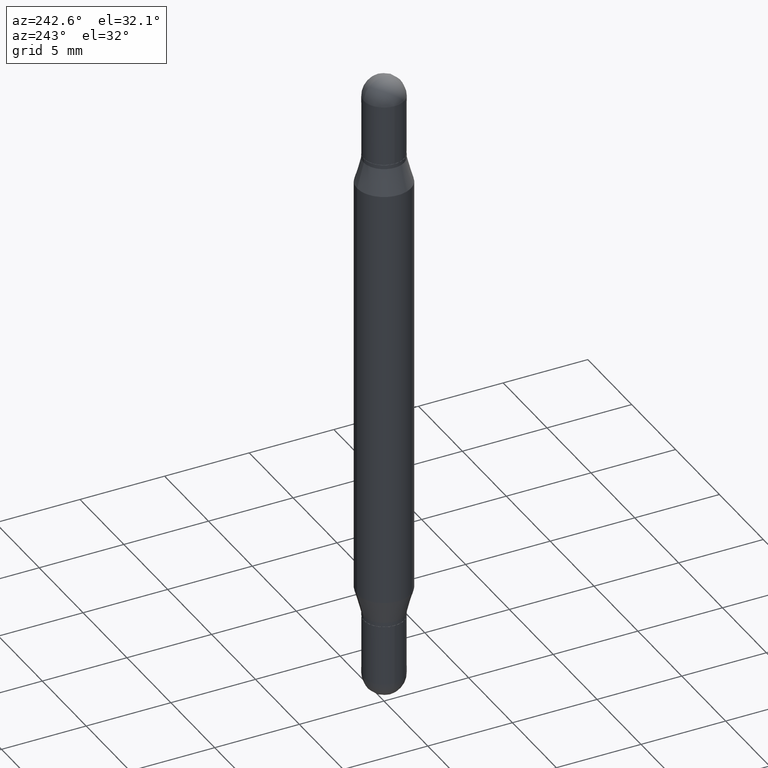
[diagram: clean part render]
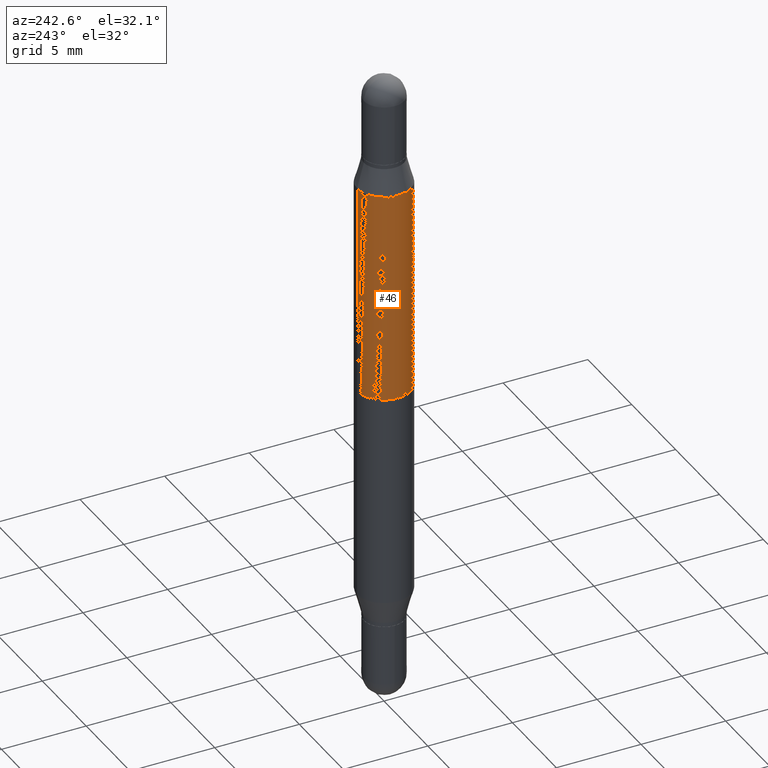
[diagram: same view with one face highlighted and labeled with its STEP entity id]
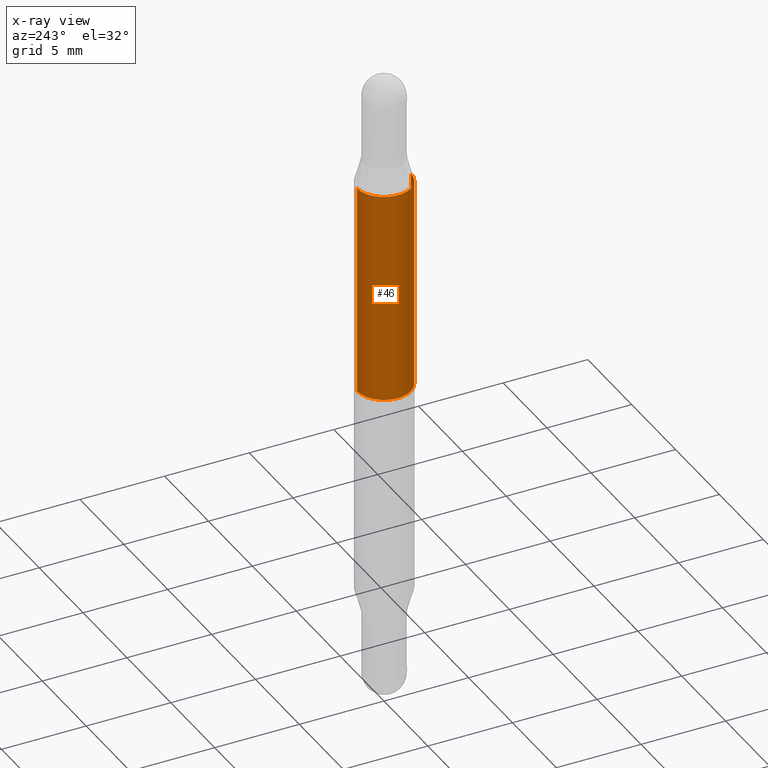
[diagram: x-ray of the same camera — body ghosted, the highlighted face saturated]
A machine part, auxiliary view. The second image highlights one B-rep face of the part: STEP entity #46.
The next image is the same camera in x-ray: the body ghosted, the highlighted face saturated — about 0% of this face is hidden behind the body in this view.
In plain terms, the highlighted cylindrical surface (edge-blend (fillet) strip) has radius 1.5875 mm, axis along (-0, -0, -1).
Its self-contained STEP definition (entity closure, byte-faithful):
#23 = AXIS2_PLACEMENT_3D ( 'NONE', #410, #71, #861 ) ;
#24 = CIRCLE ( 'NONE', #869, 0.06250000000000000000 ) ;
#45 = VERTEX_POINT ( 'NONE', #1108 ) ;
#46 = ADVANCED_FACE ( 'NONE', ( #1026 ), #422, .T. ) ;
#71 = DIRECTION ( 'NONE',  ( -2.445489716498267051E-29, -3.479644411736372261E-15, -1.000000000000000000 ) ) ;
#112 = VERTEX_POINT ( 'NONE', #836 ) ;
#125 = CARTESIAN_POINT ( 'NONE',  ( 4.287811248607450787E-16, 0.06249999999999737710, -0.7500000000000004441 ) ) ;
#142 = ORIENTED_EDGE ( 'NONE', *, *, #839, .F. ) ;
#193 = DIRECTION ( 'NONE',  ( -0.000000000000000000, -3.485547902910486918E-15, -1.000000000000000000 ) ) ;
#197 = EDGE_CURVE ( 'NONE', #45, #1049, #24, .T. ) ;
#199 = VERTEX_POINT ( 'NONE', #349 ) ;
#267 = CARTESIAN_POINT ( 'NONE',  ( -4.364351673553916201E-16, -0.06250000000000521805, -1.500000000000000222 ) ) ;
#268 = DIRECTION ( 'NONE',  ( 0.000000000000000000, 1.000000000000000000, -4.370956789862821150E-15 ) ) ;
#349 = CARTESIAN_POINT ( 'NONE',  ( 4.287811248607510938E-16, 0.06249999999999910488, -0.2552199925980757067 ) ) ;
#354 = CIRCLE ( 'NONE', #1068, 0.06250000000000000000 ) ;
#405 = VECTOR ( 'NONE', #1088, 39.37007874015748143 ) ;
#410 = CARTESIAN_POINT ( 'NONE',  ( 0.000000000000000000, -5.228321854365732350E-15, -1.500000000000000444 ) ) ;
#422 = CYLINDRICAL_SURFACE ( 'NONE', #23, 0.06250000000000000000 ) ;
#476 = VECTOR ( 'NONE', #1051, 39.37007874015748143 ) ;
#492 = CARTESIAN_POINT ( 'NONE',  ( 4.287811248607206733E-16, 0.06249999999999477501, -1.500000000000000666 ) ) ;
#532 = CARTESIAN_POINT ( 'NONE',  ( 1.834117287373700779E-29, -2.618588545563451872E-15, -0.7500000000000002220 ) ) ;
#544 = EDGE_LOOP ( 'NONE', ( #1062, #1074, #712, #142 ) ) ;
#576 = LINE ( 'NONE', #492, #405 ) ;
#598 = EDGE_CURVE ( 'NONE', #199, #1049, #576, .T. ) ;
#698 = CARTESIAN_POINT ( 'NONE',  ( 3.044096707404043958E-29, -8.969300577684643069E-16, -0.2552199925980755402 ) ) ;
#712 = ORIENTED_EDGE ( 'NONE', *, *, #197, .F. ) ;
#792 = EDGE_CURVE ( 'NONE', #199, #112, #354, .T. ) ;
#836 = CARTESIAN_POINT ( 'NONE',  ( -4.364351673553612490E-16, -0.06250000000000090206, -0.2552199925980753181 ) ) ;
#839 = EDGE_CURVE ( 'NONE', #112, #45, #863, .T. ) ;
#861 = DIRECTION ( 'NONE',  ( -6.982962677686265922E-15, -1.000000000000000000, 4.370956789862821150E-15 ) ) ;
#863 = LINE ( 'NONE', #267, #476 ) ;
#868 = DIRECTION ( 'NONE',  ( 2.445489716498267051E-29, 3.479644411736372261E-15, 1.000000000000000000 ) ) ;
#869 = AXIS2_PLACEMENT_3D ( 'NONE', #532, #193, #268 ) ;
#1026 = FACE_OUTER_BOUND ( 'NONE', #544, .T. ) ;
#1042 = DIRECTION ( 'NONE',  ( -6.982962677686265922E-15, -1.000000000000000000, 3.278217592397115862E-15 ) ) ;
#1049 = VERTEX_POINT ( 'NONE', #125 ) ;
#1051 = DIRECTION ( 'NONE',  ( -2.445489716498267051E-29, -3.479644411736372655E-15, -1.000000000000000000 ) ) ;
#1062 = ORIENTED_EDGE ( 'NONE', *, *, #792, .F. ) ;
#1068 = AXIS2_PLACEMENT_3D ( 'NONE', #698, #868, #1042 ) ;
#1074 = ORIENTED_EDGE ( 'NONE', *, *, #598, .T. ) ;
#1088 = DIRECTION ( 'NONE',  ( -2.445489716498267051E-29, -3.479644411736372655E-15, -1.000000000000000000 ) ) ;
#1108 = CARTESIAN_POINT ( 'NONE',  ( -4.364351673553732298E-16, -0.06250000000000262290, -0.7499999999999998890 ) ) ;